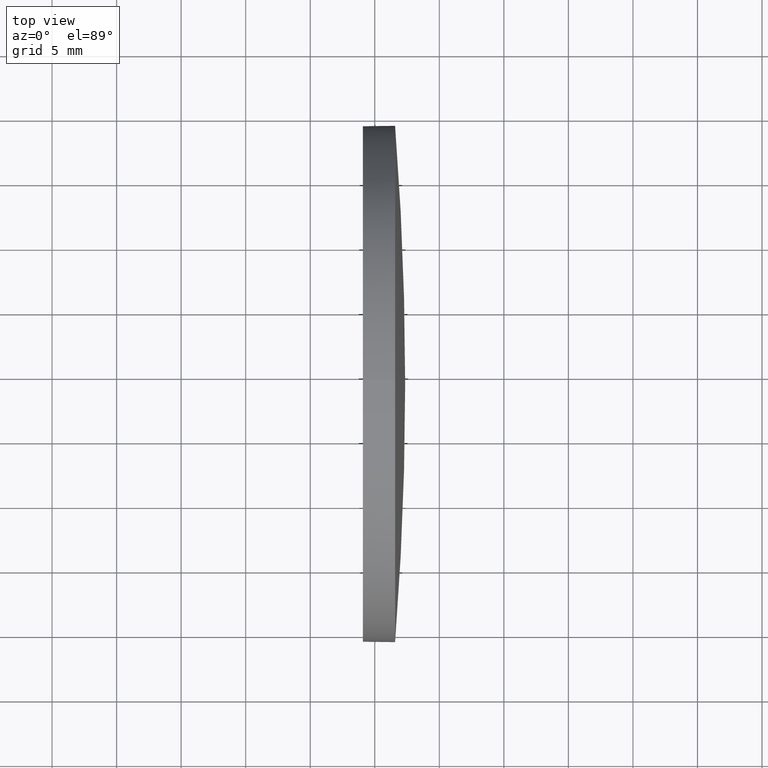
[diagram: clean part render]
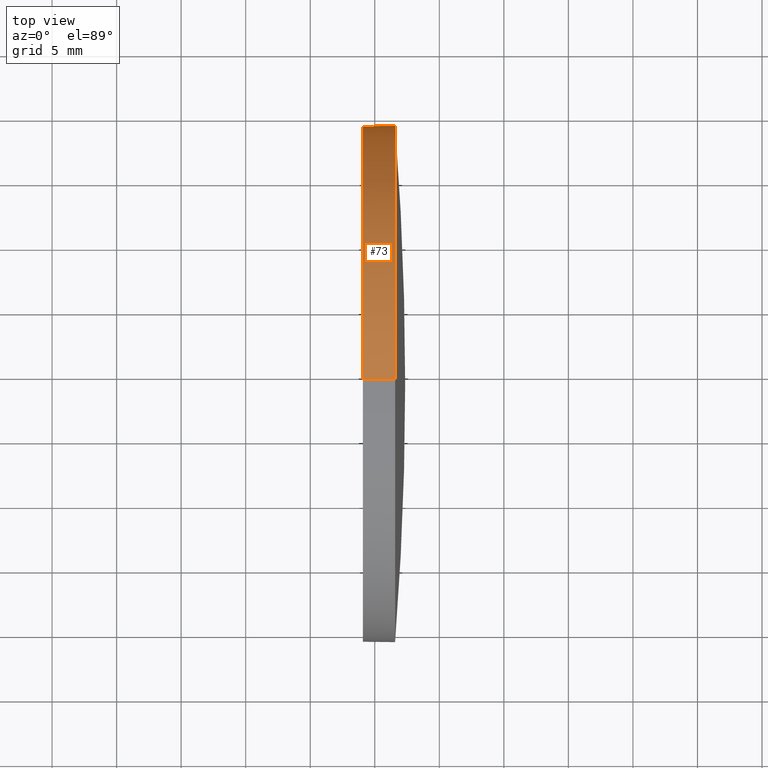
[diagram: same view with one face highlighted and labeled with its STEP entity id]
A machine part, top view. The second image highlights one B-rep face of the part: STEP entity #73.
In plain terms, the highlighted cylindrical surface (partial cylindrical patch) has radius 20 mm, axis along (-1, -0, -0).
Its self-contained STEP definition (entity closure, byte-faithful):
#1 = VECTOR ( 'NONE', #133, 1000.000000000000000 ) ;
#6 = EDGE_LOOP ( 'NONE', ( #90, #183, #8, #181, #71 ) ) ;
#8 = ORIENTED_EDGE ( 'NONE', *, *, #32, .F. ) ;
#12 = CIRCLE ( 'NONE', #50, 20.00000000000000400 ) ;
#18 = VERTEX_POINT ( 'NONE', #142 ) ;
#26 = CYLINDRICAL_SURFACE ( 'NONE', #36, 20.00000000000000400 ) ;
#28 = CARTESIAN_POINT ( 'NONE',  ( 564.0754252328479200, 109.2775278942657500, 0.0000000000000000000 ) ) ;
#29 = CARTESIAN_POINT ( 'NONE',  ( 566.5754252328480300, 109.2775278942657500, 0.0000000000000000000 ) ) ;
#32 = EDGE_CURVE ( 'NONE', #93, #62, #67, .T. ) ;
#36 = AXIS2_PLACEMENT_3D ( 'NONE', #70, #110, #184 ) ;
#42 = EDGE_CURVE ( 'NONE', #153, #18, #125, .T. ) ;
#45 = CARTESIAN_POINT ( 'NONE',  ( 564.0754252328479200, 109.2775278942657500, 20.00000000000000400 ) ) ;
#46 = CARTESIAN_POINT ( 'NONE',  ( 566.5754252328480300, 109.2775278942657500, 20.00000000000000400 ) ) ;
#50 = AXIS2_PLACEMENT_3D ( 'NONE', #147, #64, #130 ) ;
#59 = DIRECTION ( 'NONE',  ( 0.0000000000000000000, 0.0000000000000000000, 1.000000000000000000 ) ) ;
#62 = VERTEX_POINT ( 'NONE', #144 ) ;
#64 = DIRECTION ( 'NONE',  ( -1.000000000000000000, -0.0000000000000000000, -0.0000000000000000000 ) ) ;
#67 = CIRCLE ( 'NONE', #143, 20.00000000000000400 ) ;
#68 = DIRECTION ( 'NONE',  ( -1.000000000000000000, -0.0000000000000000000, -0.0000000000000000000 ) ) ;
#69 = DIRECTION ( 'NONE',  ( -1.000000000000000000, -0.0000000000000000000, -0.0000000000000000000 ) ) ;
#70 = CARTESIAN_POINT ( 'NONE',  ( 554.5689279130747300, 109.2775278942657500, 0.0000000000000000000 ) ) ;
#71 = ORIENTED_EDGE ( 'NONE', *, *, #126, .T. ) ;
#73 = ADVANCED_FACE ( 'NONE', ( #137 ), #26, .T. ) ;
#75 = CARTESIAN_POINT ( 'NONE',  ( 554.5689279130747300, 109.2775278942657500, 20.00000000000000400 ) ) ;
#84 = LINE ( 'NONE', #75, #1 ) ;
#90 = ORIENTED_EDGE ( 'NONE', *, *, #42, .T. ) ;
#93 = VERTEX_POINT ( 'NONE', #45 ) ;
#94 = EDGE_CURVE ( 'NONE', #18, #62, #167, .T. ) ;
#100 = VERTEX_POINT ( 'NONE', #46 ) ;
#110 = DIRECTION ( 'NONE',  ( -1.000000000000000000, -0.0000000000000000000, -0.0000000000000000000 ) ) ;
#112 = DIRECTION ( 'NONE',  ( 0.0000000000000000000, 0.0000000000000000000, 1.000000000000000000 ) ) ;
#115 = DIRECTION ( 'NONE',  ( -1.000000000000000000, -0.0000000000000000000, -0.0000000000000000000 ) ) ;
#122 = EDGE_CURVE ( 'NONE', #100, #93, #84, .T. ) ;
#125 = CIRCLE ( 'NONE', #165, 20.00000000000000400 ) ;
#126 = EDGE_CURVE ( 'NONE', #100, #153, #12, .T. ) ;
#127 = CARTESIAN_POINT ( 'NONE',  ( 554.5689279130747300, 109.2775278942657500, -20.00000000000000400 ) ) ;
#129 = VECTOR ( 'NONE', #115, 1000.000000000000000 ) ;
#130 = DIRECTION ( 'NONE',  ( 0.0000000000000000000, 0.0000000000000000000, 1.000000000000000000 ) ) ;
#133 = DIRECTION ( 'NONE',  ( -1.000000000000000000, -0.0000000000000000000, -0.0000000000000000000 ) ) ;
#137 = FACE_OUTER_BOUND ( 'NONE', #6, .T. ) ;
#142 = CARTESIAN_POINT ( 'NONE',  ( 566.5754252328480300, 109.2775278942657500, -20.00000000000000400 ) ) ;
#143 = AXIS2_PLACEMENT_3D ( 'NONE', #28, #69, #59 ) ;
#144 = CARTESIAN_POINT ( 'NONE',  ( 564.0754252328479200, 109.2775278942657500, -20.00000000000000400 ) ) ;
#147 = CARTESIAN_POINT ( 'NONE',  ( 566.5754252328480300, 109.2775278942657500, 0.0000000000000000000 ) ) ;
#153 = VERTEX_POINT ( 'NONE', #176 ) ;
#165 = AXIS2_PLACEMENT_3D ( 'NONE', #29, #68, #112 ) ;
#167 = LINE ( 'NONE', #127, #129 ) ;
#176 = CARTESIAN_POINT ( 'NONE',  ( 566.5754252328480300, 129.2775278942658300, 2.449293598294688800E-015 ) ) ;
#181 = ORIENTED_EDGE ( 'NONE', *, *, #122, .F. ) ;
#183 = ORIENTED_EDGE ( 'NONE', *, *, #94, .T. ) ;
#184 = DIRECTION ( 'NONE',  ( 0.0000000000000000000, 0.0000000000000000000, 1.000000000000000000 ) ) ;